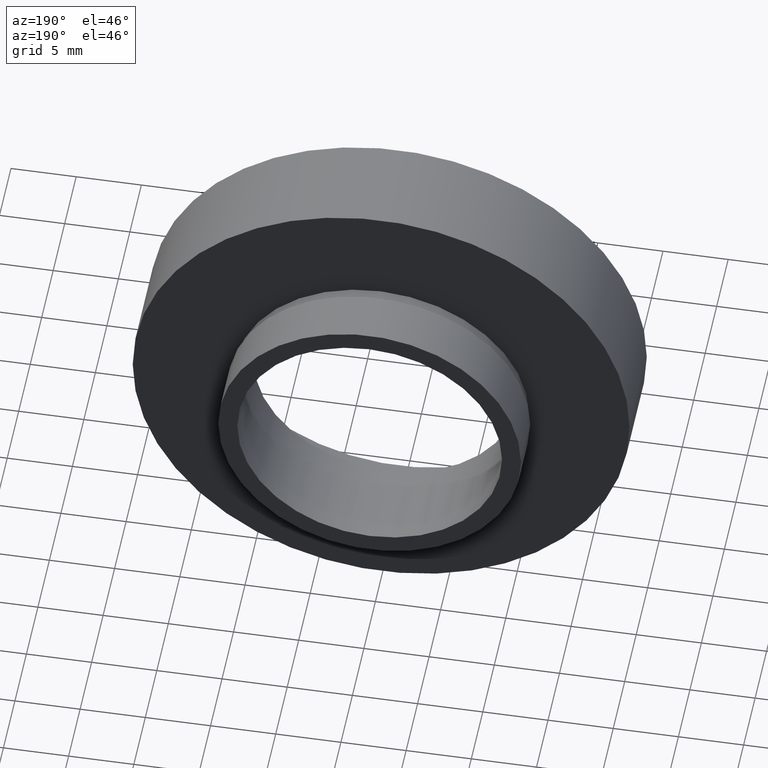
[diagram: clean part render]
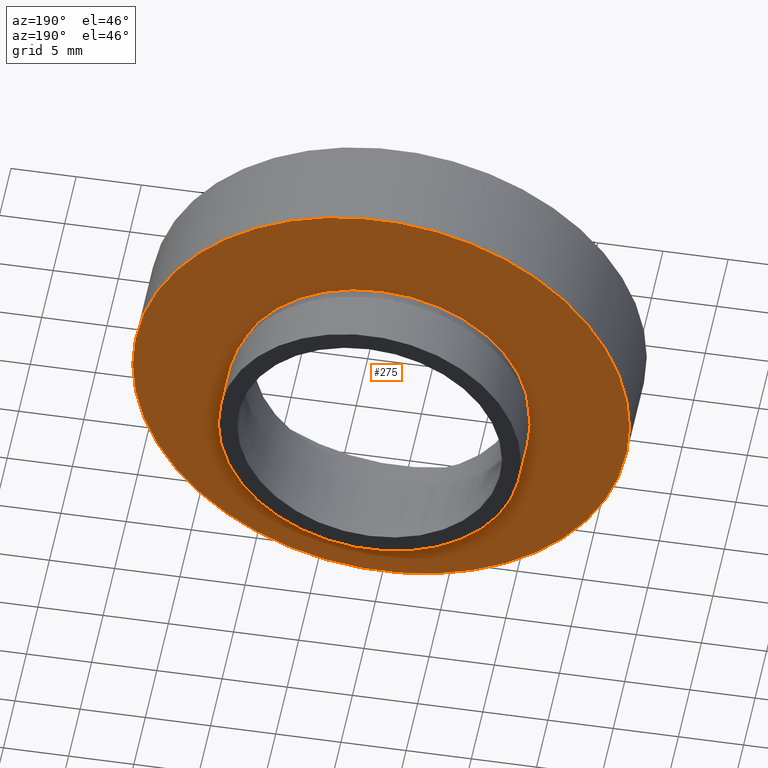
[diagram: same view with one face highlighted and labeled with its STEP entity id]
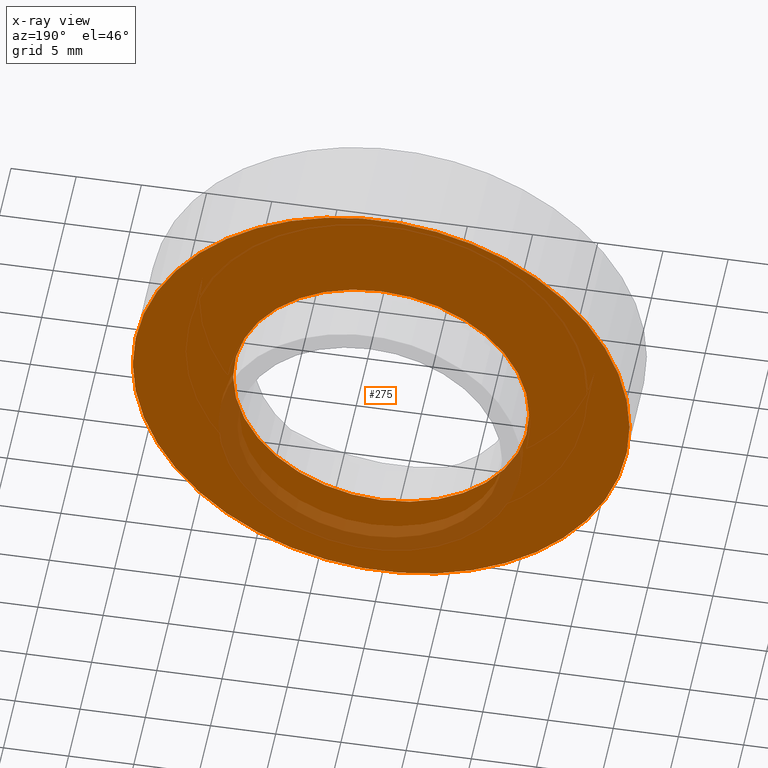
[diagram: x-ray of the same camera — body ghosted, the highlighted face saturated]
A machine part, auxiliary view. The second image highlights one B-rep face of the part: STEP entity #275.
The next image is the same camera in x-ray: the body ghosted, the highlighted face saturated — about 11% of this face is hidden behind the body in this view.
In plain terms, the highlighted planar face has unit normal (0, -1, 0).
Its self-contained STEP definition (entity closure, byte-faithful):
#4 = ORIENTED_EDGE ( 'NONE', *, *, #320, .T. ) ;
#11 = ORIENTED_EDGE ( 'NONE', *, *, #589, .F. ) ;
#13 = CARTESIAN_POINT ( 'NONE',  ( 11.35000000000000100, 7.499999999999998200, 0.0000000000000000000 ) ) ;
#35 = CIRCLE ( 'NONE', #352, 19.05000000000000400 ) ;
#56 = PLANE ( 'NONE',  #75 ) ;
#75 = AXIS2_PLACEMENT_3D ( 'NONE', #13, #440, #395 ) ;
#86 = EDGE_LOOP ( 'NONE', ( #11, #125 ) ) ;
#90 = CARTESIAN_POINT ( 'NONE',  ( 19.05000000000000400, 7.499999999999999100, 2.332952152375708400E-015 ) ) ;
#125 = ORIENTED_EDGE ( 'NONE', *, *, #295, .F. ) ;
#144 = DIRECTION ( 'NONE',  ( -1.000000000000000000, -1.365923996832131400E-016, 0.0000000000000000000 ) ) ;
#182 = VERTEX_POINT ( 'NONE', #90 ) ;
#187 = CIRCLE ( 'NONE', #259, 11.35000000000000000 ) ;
#235 = DIRECTION ( 'NONE',  ( -1.000000000000000000, -1.528390727732869900E-016, 0.0000000000000000000 ) ) ;
#241 = CARTESIAN_POINT ( 'NONE',  ( 11.35000000000000100, 7.500000000000000000, 1.389974117032245900E-015 ) ) ;
#248 = DIRECTION ( 'NONE',  ( -1.224646799147351000E-016, 1.000000000000000000, -0.0000000000000000000 ) ) ;
#258 = VERTEX_POINT ( 'NONE', #241 ) ;
#259 = AXIS2_PLACEMENT_3D ( 'NONE', #292, #485, #543 ) ;
#275 = ADVANCED_FACE ( 'NONE', ( #306, #289 ), #56, .F. ) ;
#285 = CARTESIAN_POINT ( 'NONE',  ( -11.34999999999999800, 7.499999999999996400, 0.0000000000000000000 ) ) ;
#289 = FACE_OUTER_BOUND ( 'NONE', #327, .T. ) ;
#292 = CARTESIAN_POINT ( 'NONE',  ( 1.149455719078122700E-015, 7.499999999999998200, 0.0000000000000000000 ) ) ;
#295 = EDGE_CURVE ( 'NONE', #258, #595, #187, .T. ) ;
#306 = FACE_BOUND ( 'NONE', #86, .T. ) ;
#320 = EDGE_CURVE ( 'NONE', #182, #607, #35, .T. ) ;
#327 = EDGE_LOOP ( 'NONE', ( #501, #4 ) ) ;
#328 = DIRECTION ( 'NONE',  ( -1.224646799147351000E-016, 1.000000000000000000, -0.0000000000000000000 ) ) ;
#332 = AXIS2_PLACEMENT_3D ( 'NONE', #527, #374, #144 ) ;
#333 = CARTESIAN_POINT ( 'NONE',  ( 1.149455719078122700E-015, 7.499999999999998200, 0.0000000000000000000 ) ) ;
#352 = AXIS2_PLACEMENT_3D ( 'NONE', #398, #248, #584 ) ;
#374 = DIRECTION ( 'NONE',  ( -1.224646799147351000E-016, 1.000000000000000000, -0.0000000000000000000 ) ) ;
#395 = DIRECTION ( 'NONE',  ( 1.000000000000000000, 1.224646799147351000E-016, 0.0000000000000000000 ) ) ;
#398 = CARTESIAN_POINT ( 'NONE',  ( 1.149455719078123100E-015, 7.499999999999996400, 0.0000000000000000000 ) ) ;
#440 = DIRECTION ( 'NONE',  ( 1.224646799147351000E-016, -1.000000000000000000, 0.0000000000000000000 ) ) ;
#465 = CIRCLE ( 'NONE', #542, 11.35000000000000000 ) ;
#485 = DIRECTION ( 'NONE',  ( -1.224646799147351000E-016, 1.000000000000000000, -0.0000000000000000000 ) ) ;
#500 = CIRCLE ( 'NONE', #332, 19.05000000000000400 ) ;
#501 = ORIENTED_EDGE ( 'NONE', *, *, #551, .T. ) ;
#527 = CARTESIAN_POINT ( 'NONE',  ( 1.149455719078123100E-015, 7.499999999999996400, 0.0000000000000000000 ) ) ;
#542 = AXIS2_PLACEMENT_3D ( 'NONE', #333, #328, #235 ) ;
#543 = DIRECTION ( 'NONE',  ( -1.000000000000000000, -1.528390727732869900E-016, 0.0000000000000000000 ) ) ;
#551 = EDGE_CURVE ( 'NONE', #607, #182, #500, .T. ) ;
#584 = DIRECTION ( 'NONE',  ( -1.000000000000000000, -1.365923996832131400E-016, 0.0000000000000000000 ) ) ;
#589 = EDGE_CURVE ( 'NONE', #595, #258, #465, .T. ) ;
#595 = VERTEX_POINT ( 'NONE', #285 ) ;
#607 = VERTEX_POINT ( 'NONE', #621 ) ;
#621 = CARTESIAN_POINT ( 'NONE',  ( -19.05000000000000400, 7.499999999999993800, 0.0000000000000000000 ) ) ;